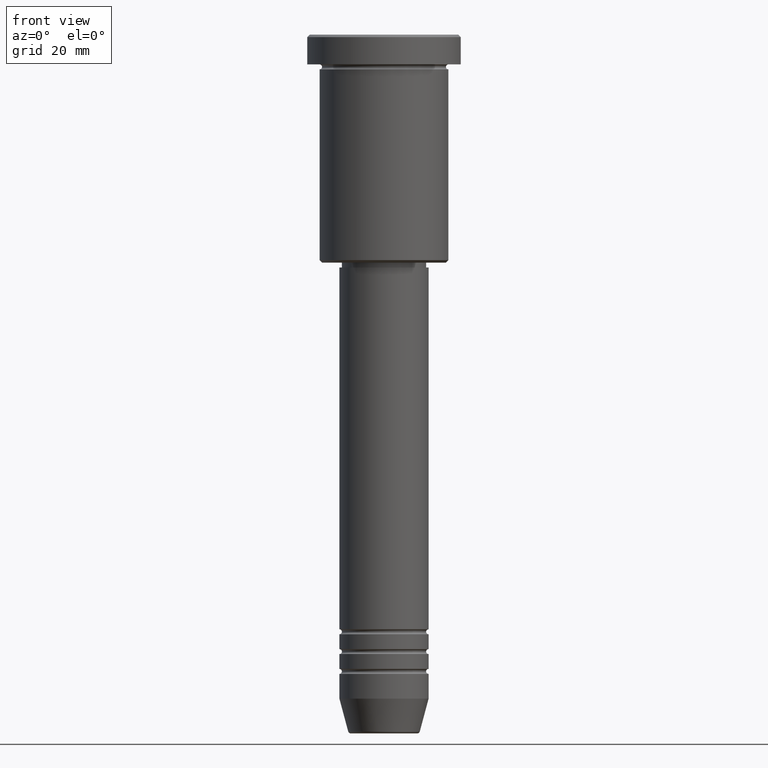
[diagram: clean part render]
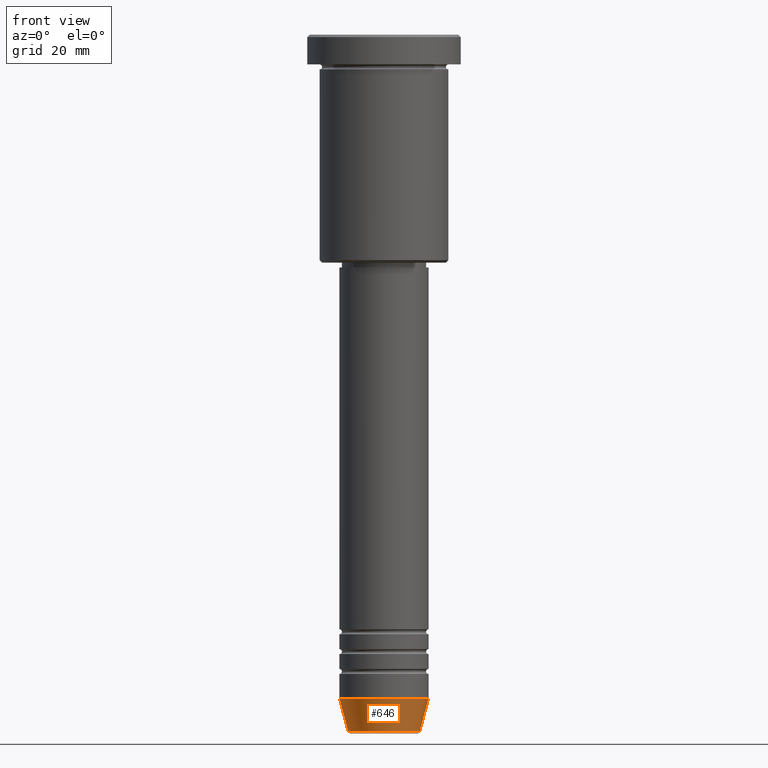
[diagram: same view with one face highlighted and labeled with its STEP entity id]
A machine part, front view. The second image highlights one B-rep face of the part: STEP entity #646.
In plain terms, the highlighted conical surface has half-angle 15 deg.
Its self-contained STEP definition (entity closure, byte-faithful):
#92 = AXIS2_PLACEMENT_3D ( 'NONE', #811, #731, #190 ) ;
#101 = CARTESIAN_POINT ( 'NONE',  ( 0.000000000000000000, 0.000000000000000000, -134.0000000000000000 ) ) ;
#122 = CARTESIAN_POINT ( 'NONE',  ( -7.223655072137189492, 9.934123627281765110E-16, -140.6294095225512990 ) ) ;
#190 = DIRECTION ( 'NONE',  ( 1.000000000000000000, 0.000000000000000000, 0.000000000000000000 ) ) ;
#193 = DIRECTION ( 'NONE',  ( -0.000000000000000000, -0.000000000000000000, 1.000000000000000000 ) ) ;
#195 = LINE ( 'NONE', #754, #417 ) ;
#212 = CARTESIAN_POINT ( 'NONE',  ( -9.000000000000000000, 1.102182119232617714E-15, -134.0000000000000000 ) ) ;
#214 = EDGE_CURVE ( 'NONE', #519, #549, #195, .T. ) ;
#243 = EDGE_CURVE ( 'NONE', #848, #519, #959, .T. ) ;
#324 = VECTOR ( 'NONE', #1124, 1000.000000000000000 ) ;
#386 = CARTESIAN_POINT ( 'NONE',  ( 7.223655072137188604, 0.000000000000000000, -140.6294095225512990 ) ) ;
#400 = AXIS2_PLACEMENT_3D ( 'NONE', #101, #193, #1037 ) ;
#417 = VECTOR ( 'NONE', #1015, 1000.000000000000000 ) ;
#448 = ORIENTED_EDGE ( 'NONE', *, *, #243, .T. ) ;
#465 = EDGE_LOOP ( 'NONE', ( #537, #448, #675, #1078 ) ) ;
#500 = LINE ( 'NONE', #673, #324 ) ;
#519 = VERTEX_POINT ( 'NONE', #386 ) ;
#537 = ORIENTED_EDGE ( 'NONE', *, *, #604, .F. ) ;
#549 = VERTEX_POINT ( 'NONE', #744 ) ;
#604 = EDGE_CURVE ( 'NONE', #848, #617, #500, .T. ) ;
#617 = VERTEX_POINT ( 'NONE', #212 ) ;
#646 = ADVANCED_FACE ( 'NONE', ( #683 ), #884, .T. ) ;
#673 = CARTESIAN_POINT ( 'NONE',  ( -9.000000000000000000, 1.102182119232617714E-15, -134.0000000000000000 ) ) ;
#675 = ORIENTED_EDGE ( 'NONE', *, *, #214, .T. ) ;
#676 = DIRECTION ( 'NONE',  ( 1.000000000000000000, 0.000000000000000000, 0.000000000000000000 ) ) ;
#682 = CARTESIAN_POINT ( 'NONE',  ( 0.000000000000000000, 0.000000000000000000, -134.0000000000000000 ) ) ;
#683 = FACE_OUTER_BOUND ( 'NONE', #465, .T. ) ;
#731 = DIRECTION ( 'NONE',  ( -0.000000000000000000, -0.000000000000000000, 1.000000000000000000 ) ) ;
#744 = CARTESIAN_POINT ( 'NONE',  ( 9.000000000000000000, 0.000000000000000000, -134.0000000000000000 ) ) ;
#754 = CARTESIAN_POINT ( 'NONE',  ( 9.000000000000000000, 0.000000000000000000, -134.0000000000000000 ) ) ;
#811 = CARTESIAN_POINT ( 'NONE',  ( 0.000000000000000000, 0.000000000000000000, -140.6294095225512990 ) ) ;
#848 = VERTEX_POINT ( 'NONE', #122 ) ;
#884 = CONICAL_SURFACE ( 'NONE', #400, 9.000000000000000000, 0.2617993877991500740 ) ;
#947 = EDGE_CURVE ( 'NONE', #617, #549, #1073, .T. ) ;
#959 = CIRCLE ( 'NONE', #92, 7.223655072137188604 ) ;
#1015 = DIRECTION ( 'NONE',  ( 0.2588190451025213501, 0.000000000000000000, 0.9659258262890680902 ) ) ;
#1037 = DIRECTION ( 'NONE',  ( 1.000000000000000000, 0.000000000000000000, 0.000000000000000000 ) ) ;
#1073 = CIRCLE ( 'NONE', #1179, 9.000000000000000000 ) ;
#1078 = ORIENTED_EDGE ( 'NONE', *, *, #947, .F. ) ;
#1124 = DIRECTION ( 'NONE',  ( -0.2588190451025213501, 3.169619151431772337E-17, 0.9659258262890680902 ) ) ;
#1129 = DIRECTION ( 'NONE',  ( -0.000000000000000000, -0.000000000000000000, 1.000000000000000000 ) ) ;
#1179 = AXIS2_PLACEMENT_3D ( 'NONE', #682, #1129, #676 ) ;